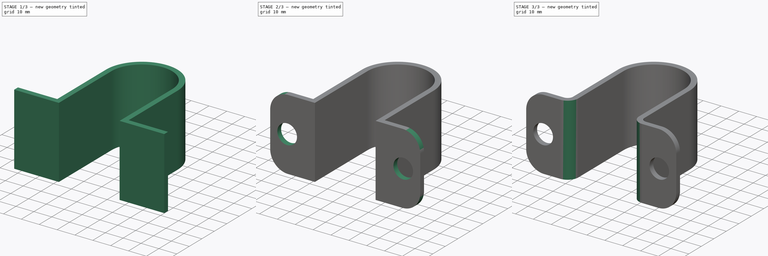
[diagram: build sequence overview — one tinted view per stage of 3, left to right]
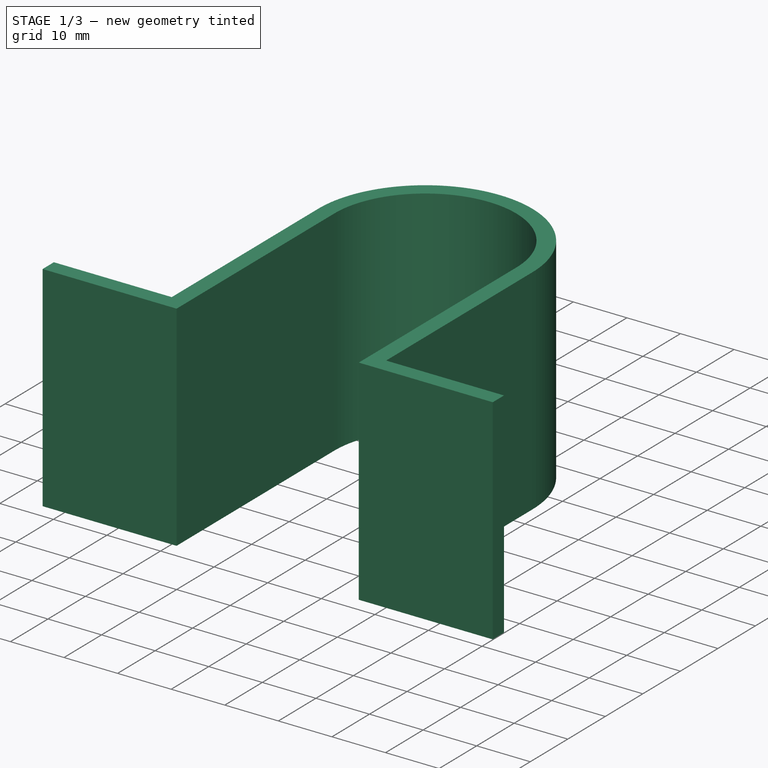
[diagram: stage 1 of 3 — iso view after this stage's code; geometry added in this stage tinted green]
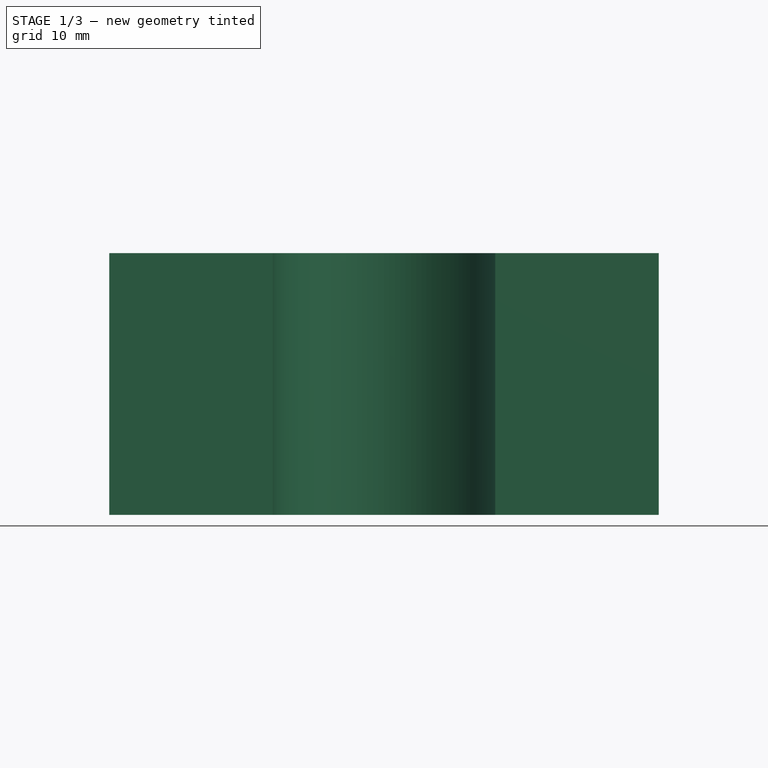
[diagram: stage 1 of 3 — front view after this stage's code; geometry added in this stage tinted green]
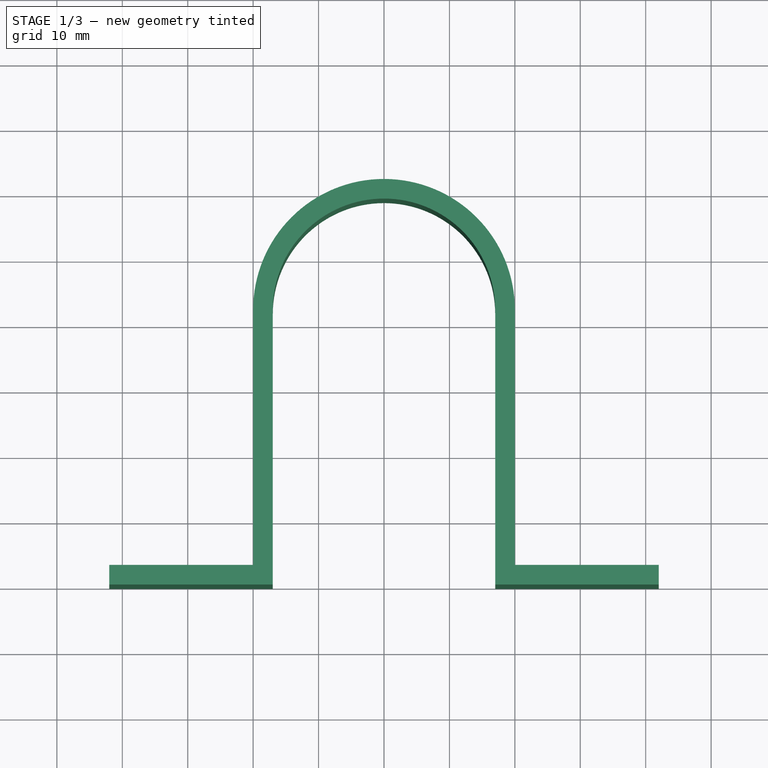
[diagram: stage 1 of 3 — top view after this stage's code; geometry added in this stage tinted green]
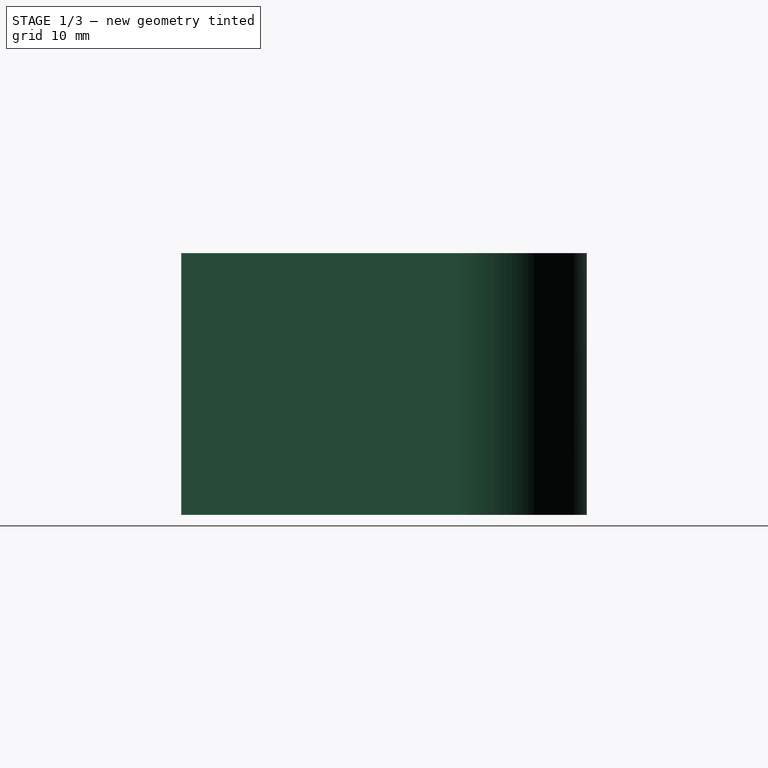
[diagram: stage 1 of 3 — right view after this stage's code; geometry added in this stage tinted green]
FCSTD DOCUMENT  (FreeCAD 0.18R4 (GitTag))
Label: door-brasket-small
License: All rights reserved
LicenseURL: http://en.wikipedia.org/wiki/All_rights_reserved
objects: PartDesign::Fillet×3, Sketcher::SketchObject×2, PartDesign::Pad×1, PartDesign::Mirrored×1, PartDesign::Pocket×1, PartDesign::Body×1
note: 11 computed .brp shape members not serialized (recipe doc carries the construction recipe); baked Part::Feature solids carry a one-line shape summary decoded from their .brp

FEATURE [Sketcher::SketchObject] Sketch
  MapMode = 5
  Support = -> [XY_Plane]
  sketch-geometry (8):
    g0: LineSegment StartX=-42 StartY=3 StartZ=0 EndX=-20 EndY=3 EndZ=0
    g1: LineSegment StartX=-20 StartY=3 StartZ=0 EndX=-20 EndY=42 EndZ=0
    g2: LineSegment StartX=-17 StartY=42 StartZ=0 EndX=-17 EndY=0 EndZ=0
    g3: LineSegment StartX=-17 StartY=0 StartZ=0 EndX=-42 EndY=0 EndZ=0
    g4: LineSegment StartX=-42 StartY=0 StartZ=0 EndX=-42 EndY=3 EndZ=0
    g5: ArcOfCircle CenterX=-9e-16 CenterY=42 CenterZ=0 NormalX=0 NormalY=0 NormalZ=1 AngleXU=0 Radius=17 StartAngle=1.5708 EndAngle=3.14159
    g6: ArcOfCircle CenterX=1.5e-15 CenterY=42 CenterZ=0 NormalX=0 NormalY=0 NormalZ=1 AngleXU=0 Radius=20 StartAngle=1.5708 EndAngle=3.14159
    g7: LineSegment StartX=-1.7e-15 StartY=62 StartZ=0 EndX=2e-16 EndY=59 EndZ=0
  constraints (24):
    c: Horizontal(g0)
    c: Coincident(g1,g0)
    c: Vertical(g1)
    c: Vertical(g2)
    c: Coincident(g3,g2)
    c: Horizontal(g3)
    c: Coincident(g4,g3)
    c: Coincident(g4,g0)
    c: Vertical(g4)
    c: DistanceY(g4,g4) = 3
    c: DistanceX(g3,g-1) = 42
    c: Tangent(g2,g5) = -1.5708
    c: Tangent(g1,g6) = 1.5708
    c: Radius(g5) = 17
    c: Radius(g6) = 20
    c: DistanceX(g1,g2) = 3
    c: PointOnObject(g6,g-2)
    c: PointOnObject(g5,g-2)
    c: DistanceX(g1,g6) = 20
    c: Coincident(g7,g6)
    c: Coincident(g7,g5)
    c: DistanceY(g7,g7) = 3
    c: DistanceY(g2,g1) = 42
    c: PointOnObject(g2,g-1)
FEATURE [PartDesign::Pad] Pad
  Length = 40
  Length2 = 100
  Profile = -> Sketch
  Refine = true
  Type = 0
FEATURE [PartDesign::Mirrored] Mirrored
  BaseFeature = -> Pad
  MirrorPlane = -> YZ_Plane
  Originals = -> [Pad]
  Refine = true
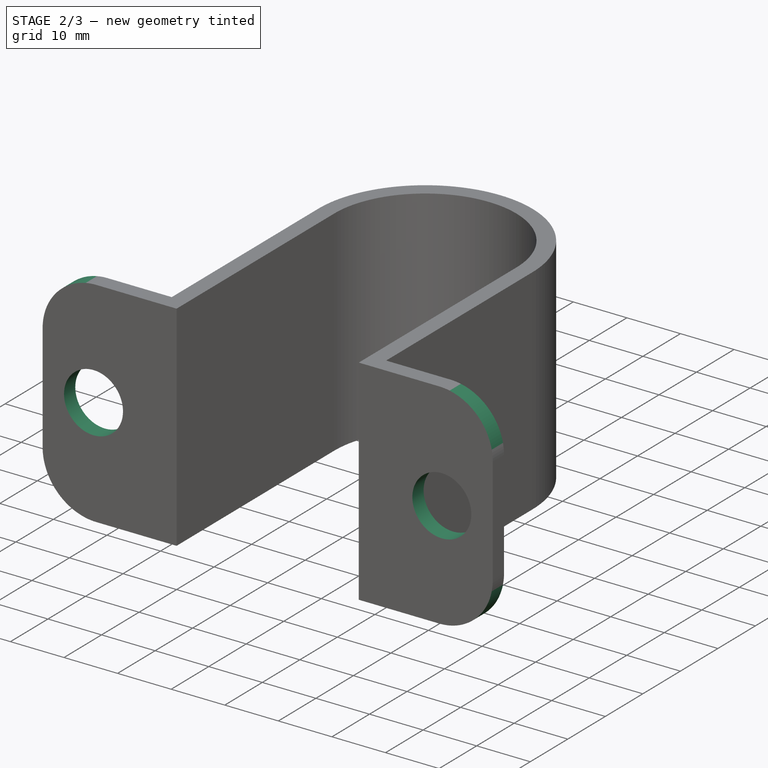
[diagram: stage 2 of 3 — iso view after this stage's code; geometry added in this stage tinted green]
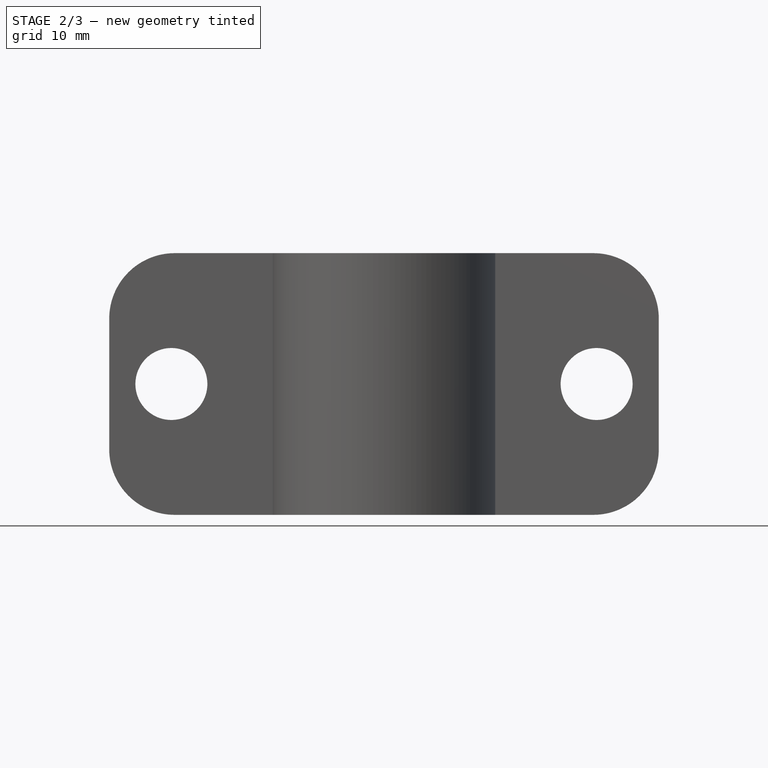
[diagram: stage 2 of 3 — front view after this stage's code; geometry added in this stage tinted green]
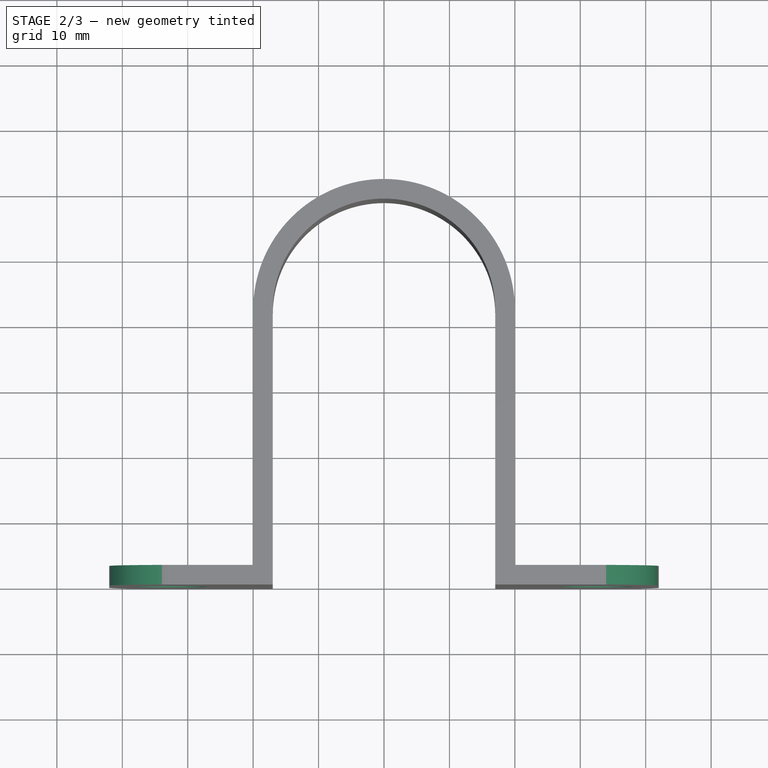
[diagram: stage 2 of 3 — top view after this stage's code; geometry added in this stage tinted green]
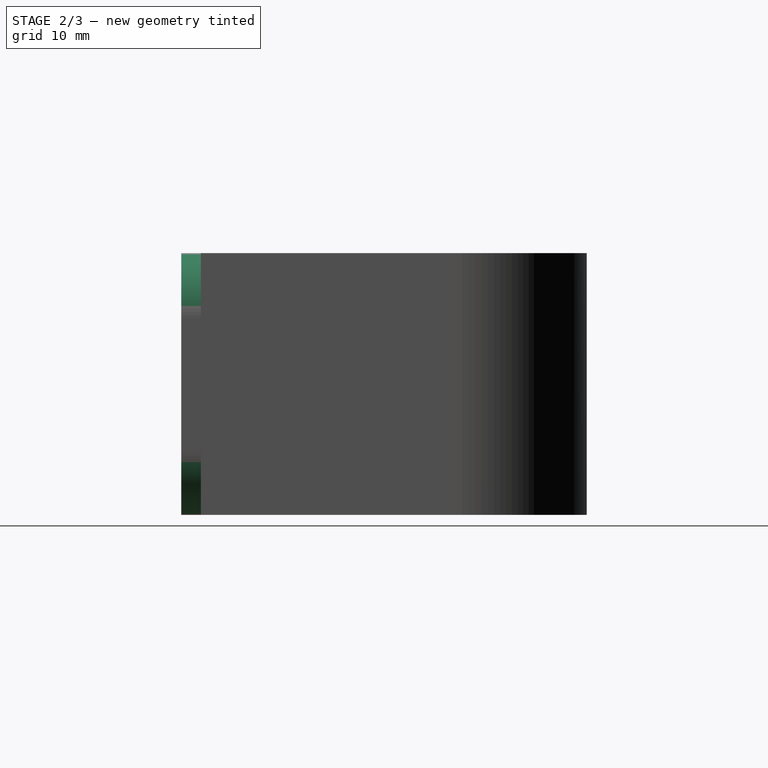
[diagram: stage 2 of 3 — right view after this stage's code; geometry added in this stage tinted green]
FEATURE [PartDesign::Fillet] Fillet
  Base = -> Mirrored [Edge32,Edge22,Edge10,Edge9]
  BaseFeature = -> Mirrored
  Radius = 10
FEATURE [Sketcher::SketchObject] Sketch001
  MapMode = 5
  Placement = pos=(7e-16,3,0) rot=(0,0.707107,0.707107;3.14159rad)
  Support = -> [Fillet]
  sketch-geometry (2):
    g0: Circle CenterX=-32.5 CenterY=20 CenterZ=0 NormalX=0 NormalY=0 NormalZ=1 AngleXU=0 Radius=5.5
    g1: Circle CenterX=32.5 CenterY=20 CenterZ=0 NormalX=0 NormalY=0 NormalZ=1 AngleXU=0 Radius=5.5
  constraints (6):
    c: DistanceX(g0,g1) = 65
    c: DistanceY(g-1,g1) = 20
    c: DistanceY(g-1,g0) = 20
    c: DistanceX(g-1,g1) = 32.5
    c: Diameter(g1) = 11
    c: Equal(g1,g0)
FEATURE [PartDesign::Pocket] Pocket
  BaseFeature = -> Fillet
  Length = 5
  Length2 = 100
  Profile = -> Sketch001
  Refine = true
  Type = 0
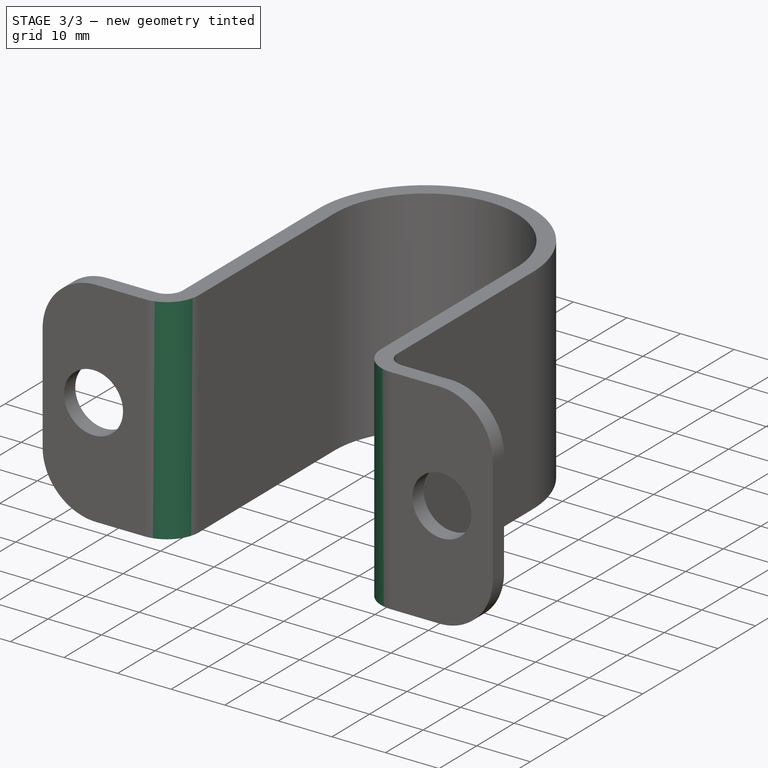
[diagram: stage 3 of 3 — iso view after this stage's code; geometry added in this stage tinted green]
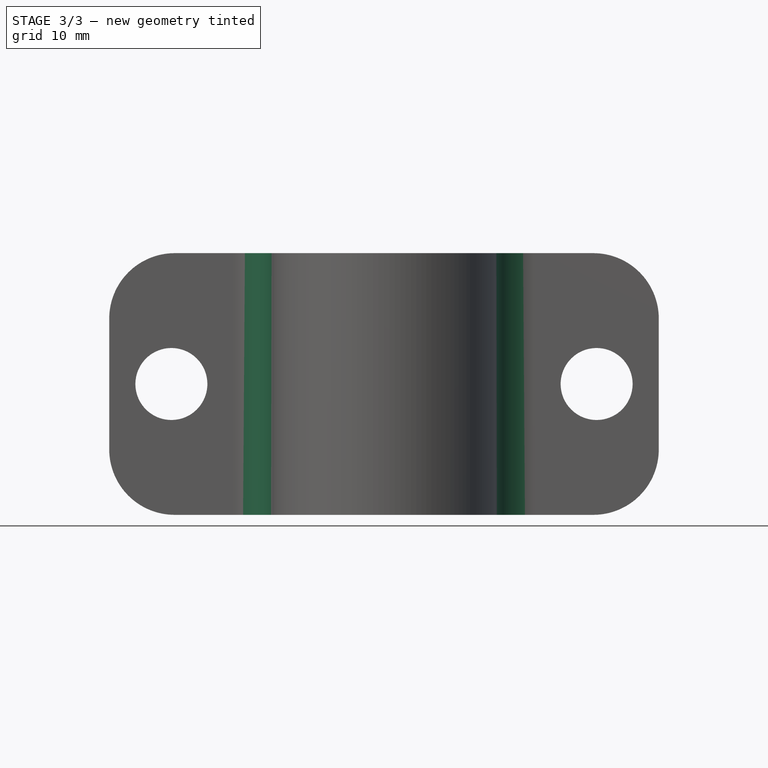
[diagram: stage 3 of 3 — front view after this stage's code; geometry added in this stage tinted green]
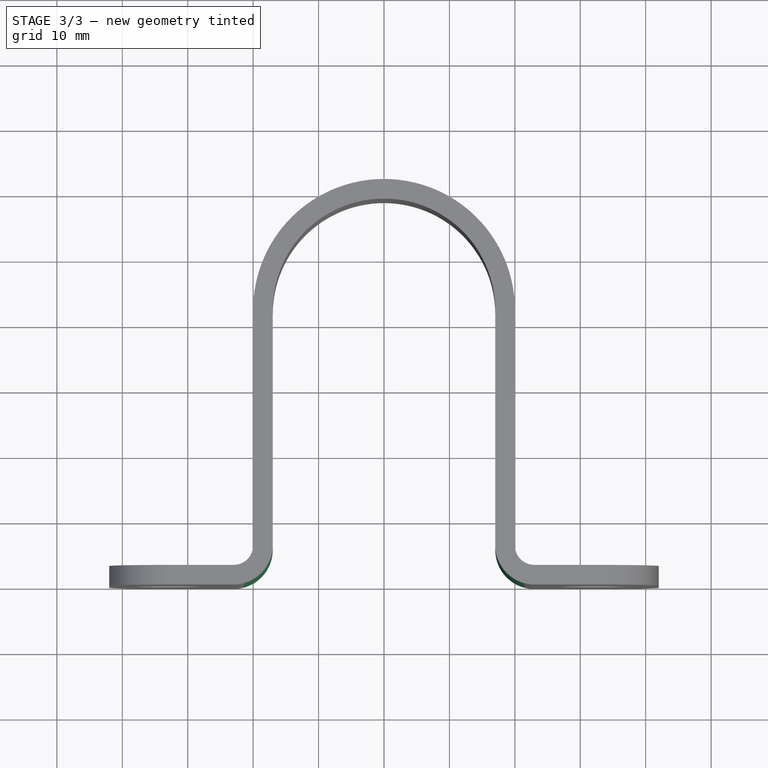
[diagram: stage 3 of 3 — top view after this stage's code; geometry added in this stage tinted green]
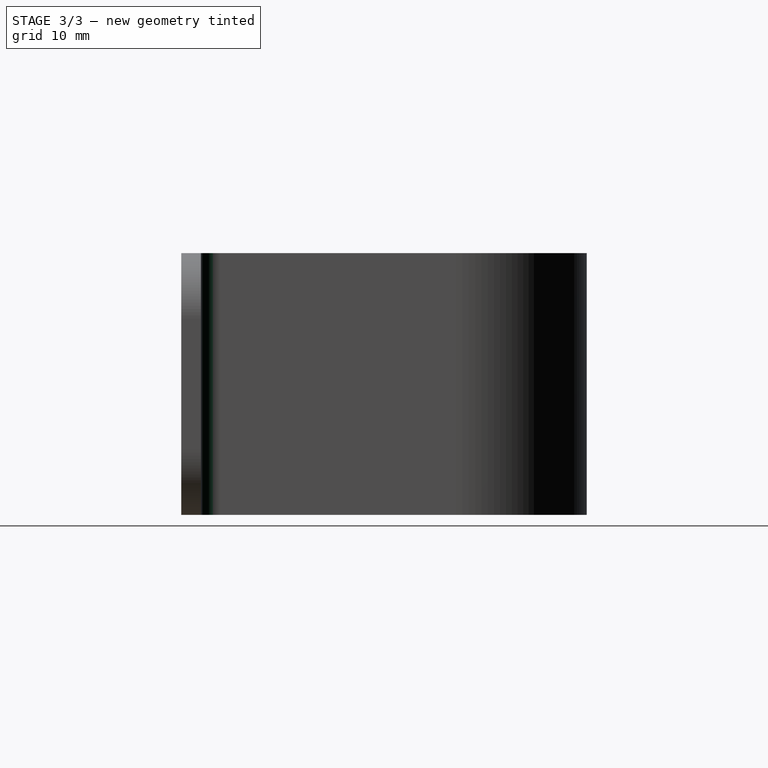
[diagram: stage 3 of 3 — right view after this stage's code; geometry added in this stage tinted green]
FEATURE [PartDesign::Fillet] Fillet001
  Base = -> Pocket [Edge51,Edge42]
  BaseFeature = -> Pocket
  Radius = 3
FEATURE [PartDesign::Fillet] Fillet002
  Base = -> Fillet001 [Edge32,Edge46]
  BaseFeature = -> Fillet001
  Radius = 6
FEATURE [PartDesign::Body] Body
  Group = -> [Sketch,Pad,Mirrored,Fillet,Sketch001,Pocket,Fillet001,Fillet002]
  Origin = -> Origin
  Tip = -> Fillet002
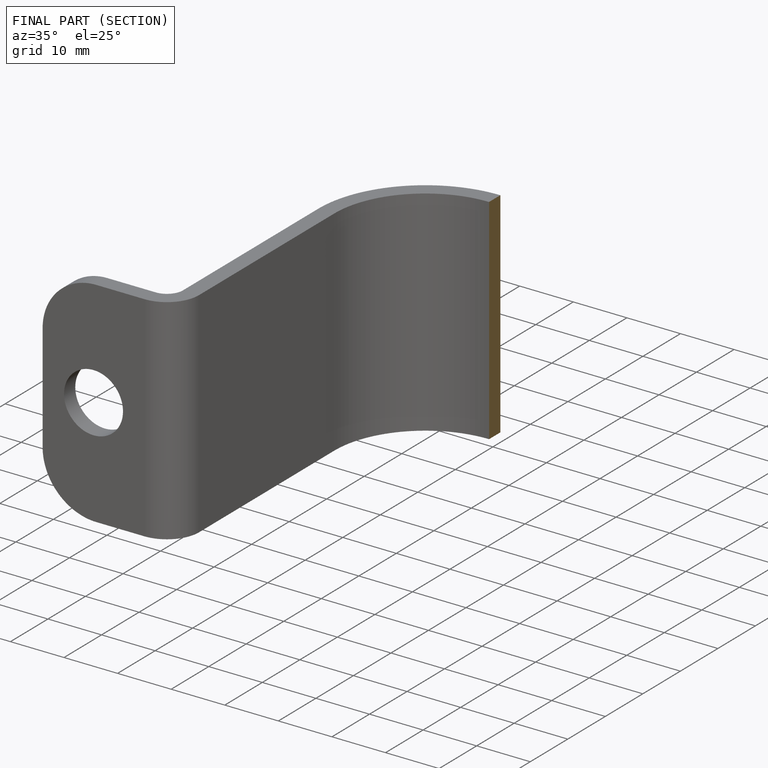
[diagram: finished part — half-section view (interior)]
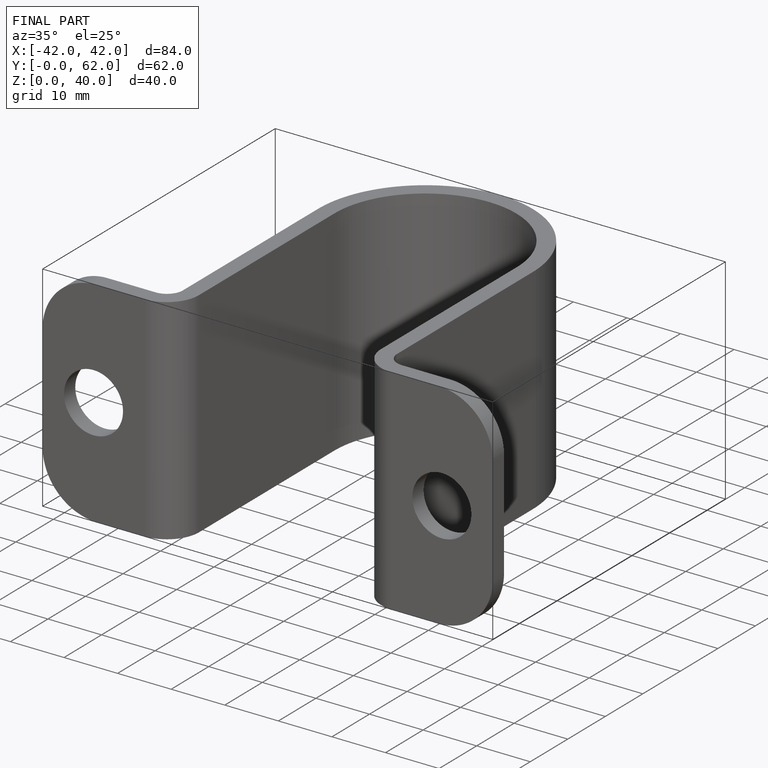
[diagram: finished part — iso view with bounding-box wireframe]
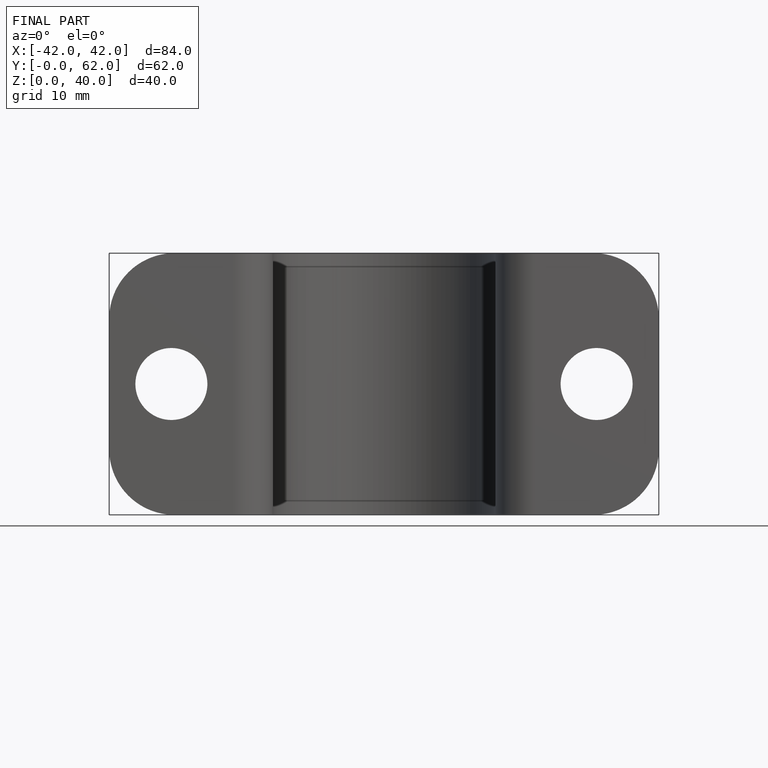
[diagram: finished part — front view with bounding-box wireframe]
